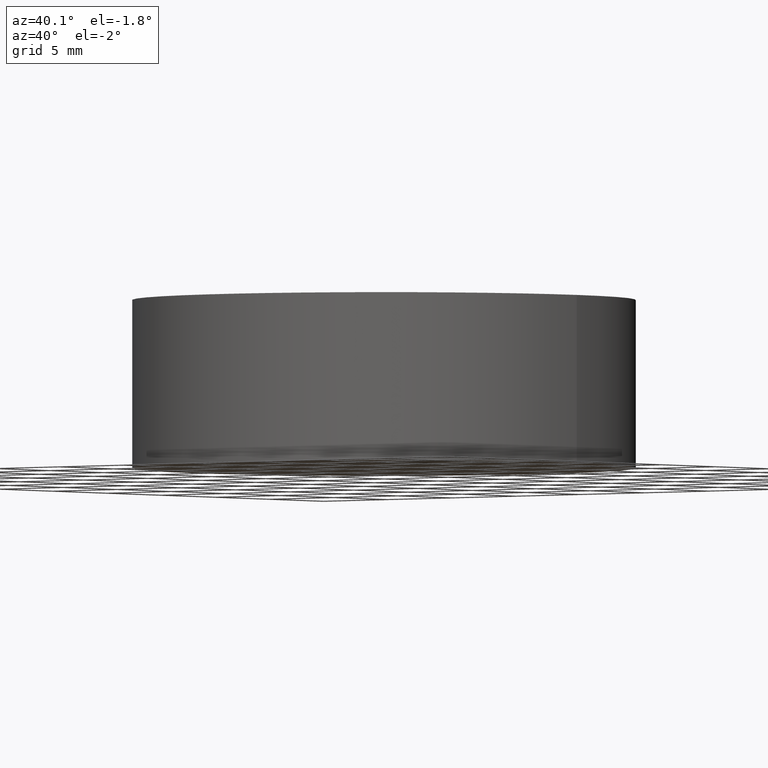
[diagram: clean part render]
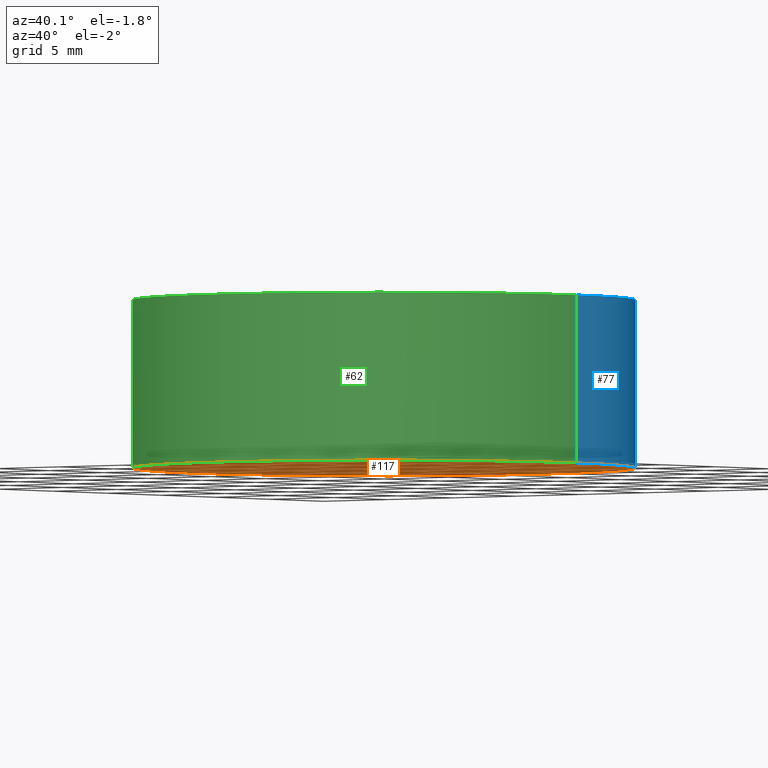
[diagram: same view with three faces highlighted in distinct colors, each labeled with its STEP entity id]
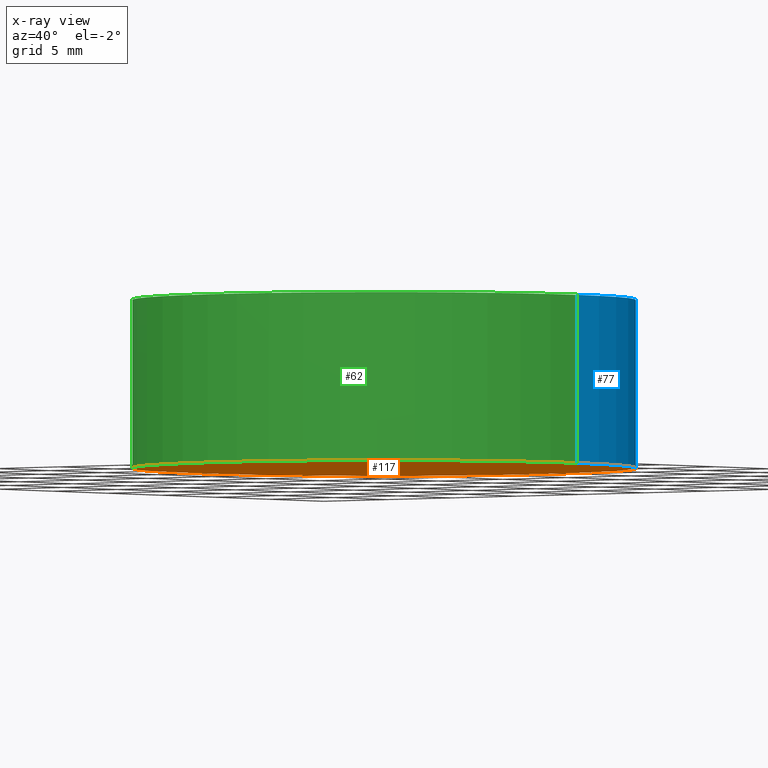
[diagram: x-ray of the same camera — body ghosted, the three highlighted faces saturated]
A machine part, auxiliary view with three faces highlighted in distinct colors.
The next image is the same camera in x-ray (body ghosted, the three faces saturated) — at least one of them is partly hidden behind the body in this view.
Their STEP definitions:

[orange] entity #117 — the highlighted planar face has unit normal (0, 0, 1).
#8 = DIRECTION ( 'NONE',  ( 1.000000000000000000, 0.0000000000000000000, 0.0000000000000000000 ) ) ;
#9 = ORIENTED_EDGE ( 'NONE', *, *, #85, .F. ) ;
#11 = VERTEX_POINT ( 'NONE', #39 ) ;
#17 = CIRCLE ( 'NONE', #114, 15.00000000000000000 ) ;
#19 = CARTESIAN_POINT ( 'NONE',  ( 0.0000000000000000000, 0.0000000000000000000, 0.0000000000000000000 ) ) ;
#28 = AXIS2_PLACEMENT_3D ( 'NONE', #126, #94, #109 ) ;
#29 = PLANE ( 'NONE',  #140 ) ;
#32 = ORIENTED_EDGE ( 'NONE', *, *, #127, .F. ) ;
#39 = CARTESIAN_POINT ( 'NONE',  ( 15.00000000000000000, 1.836970198721029600E-015, 0.0000000000000000000 ) ) ;
#49 = CIRCLE ( 'NONE', #28, 15.00000000000000000 ) ;
#70 = FACE_OUTER_BOUND ( 'NONE', #108, .T. ) ;
#73 = DIRECTION ( 'NONE',  ( 0.0000000000000000000, 0.0000000000000000000, 1.000000000000000000 ) ) ;
#81 = DIRECTION ( 'NONE',  ( 0.0000000000000000000, 0.0000000000000000000, 1.000000000000000000 ) ) ;
#85 = EDGE_CURVE ( 'NONE', #11, #118, #17, .T. ) ;
#94 = DIRECTION ( 'NONE',  ( 0.0000000000000000000, 0.0000000000000000000, 1.000000000000000000 ) ) ;
#102 = CARTESIAN_POINT ( 'NONE',  ( 0.0000000000000000000, 0.0000000000000000000, 0.0000000000000000000 ) ) ;
#108 = EDGE_LOOP ( 'NONE', ( #32, #9 ) ) ;
#109 = DIRECTION ( 'NONE',  ( 1.000000000000000000, 0.0000000000000000000, 0.0000000000000000000 ) ) ;
#114 = AXIS2_PLACEMENT_3D ( 'NONE', #19, #81, #8 ) ;
#117 = ADVANCED_FACE ( 'NONE', ( #70 ), #29, .F. ) ;
#118 = VERTEX_POINT ( 'NONE', #133 ) ;
#126 = CARTESIAN_POINT ( 'NONE',  ( 0.0000000000000000000, 0.0000000000000000000, 0.0000000000000000000 ) ) ;
#127 = EDGE_CURVE ( 'NONE', #118, #11, #49, .T. ) ;
#133 = CARTESIAN_POINT ( 'NONE',  ( -15.00000000000000000, 0.0000000000000000000, 0.0000000000000000000 ) ) ;
#137 = DIRECTION ( 'NONE',  ( 1.000000000000000000, 0.0000000000000000000, -0.0000000000000000000 ) ) ;
#140 = AXIS2_PLACEMENT_3D ( 'NONE', #102, #73, #137 ) ;

[blue] entity #77 — the highlighted cylindrical surface (partial cylindrical patch) has radius 15 mm, axis along (-0, -0, -1).
#3 = ORIENTED_EDGE ( 'NONE', *, *, #22, .F. ) ;
#4 = ORIENTED_EDGE ( 'NONE', *, *, #27, .T. ) ;
#6 = CARTESIAN_POINT ( 'NONE',  ( 0.0000000000000000000, 0.0000000000000000000, 10.00000000000000000 ) ) ;
#8 = DIRECTION ( 'NONE',  ( 1.000000000000000000, 0.0000000000000000000, 0.0000000000000000000 ) ) ;
#10 = DIRECTION ( 'NONE',  ( -1.000000000000000000, 0.0000000000000000000, 0.0000000000000000000 ) ) ;
#11 = VERTEX_POINT ( 'NONE', #39 ) ;
#17 = CIRCLE ( 'NONE', #114, 15.00000000000000000 ) ;
#19 = CARTESIAN_POINT ( 'NONE',  ( 0.0000000000000000000, 0.0000000000000000000, 0.0000000000000000000 ) ) ;
#20 = CARTESIAN_POINT ( 'NONE',  ( 15.00000000000000000, 1.836970198721029600E-015, 10.00000000000000000 ) ) ;
#21 = CARTESIAN_POINT ( 'NONE',  ( 0.0000000000000000000, 0.0000000000000000000, 10.00000000000000000 ) ) ;
#22 = EDGE_CURVE ( 'NONE', #60, #63, #111, .T. ) ;
#27 = EDGE_CURVE ( 'NONE', #60, #11, #75, .T. ) ;
#36 = DIRECTION ( 'NONE',  ( 0.0000000000000000000, 0.0000000000000000000, 1.000000000000000000 ) ) ;
#39 = CARTESIAN_POINT ( 'NONE',  ( 15.00000000000000000, 1.836970198721029600E-015, 0.0000000000000000000 ) ) ;
#40 = EDGE_LOOP ( 'NONE', ( #3, #4, #91, #84 ) ) ;
#47 = DIRECTION ( 'NONE',  ( -0.0000000000000000000, -0.0000000000000000000, -1.000000000000000000 ) ) ;
#48 = LINE ( 'NONE', #92, #93 ) ;
#51 = FACE_OUTER_BOUND ( 'NONE', #40, .T. ) ;
#57 = DIRECTION ( 'NONE',  ( -0.0000000000000000000, -0.0000000000000000000, -1.000000000000000000 ) ) ;
#60 = VERTEX_POINT ( 'NONE', #20 ) ;
#63 = VERTEX_POINT ( 'NONE', #72 ) ;
#72 = CARTESIAN_POINT ( 'NONE',  ( -15.00000000000000000, 0.0000000000000000000, 10.00000000000000000 ) ) ;
#74 = CARTESIAN_POINT ( 'NONE',  ( 15.00000000000000000, 1.836970198721029600E-015, 10.00000000000000000 ) ) ;
#75 = LINE ( 'NONE', #74, #99 ) ;
#77 = ADVANCED_FACE ( 'NONE', ( #51 ), #139, .T. ) ;
#81 = DIRECTION ( 'NONE',  ( 0.0000000000000000000, 0.0000000000000000000, 1.000000000000000000 ) ) ;
#84 = ORIENTED_EDGE ( 'NONE', *, *, #138, .F. ) ;
#85 = EDGE_CURVE ( 'NONE', #11, #118, #17, .T. ) ;
#91 = ORIENTED_EDGE ( 'NONE', *, *, #85, .T. ) ;
#92 = CARTESIAN_POINT ( 'NONE',  ( -15.00000000000000000, 0.0000000000000000000, 10.00000000000000000 ) ) ;
#93 = VECTOR ( 'NONE', #112, 1000.000000000000000 ) ;
#99 = VECTOR ( 'NONE', #57, 1000.000000000000000 ) ;
#100 = AXIS2_PLACEMENT_3D ( 'NONE', #21, #36, #105 ) ;
#105 = DIRECTION ( 'NONE',  ( 1.000000000000000000, 0.0000000000000000000, 0.0000000000000000000 ) ) ;
#111 = CIRCLE ( 'NONE', #100, 15.00000000000000000 ) ;
#112 = DIRECTION ( 'NONE',  ( -0.0000000000000000000, -0.0000000000000000000, -1.000000000000000000 ) ) ;
#114 = AXIS2_PLACEMENT_3D ( 'NONE', #19, #81, #8 ) ;
#118 = VERTEX_POINT ( 'NONE', #133 ) ;
#125 = AXIS2_PLACEMENT_3D ( 'NONE', #6, #47, #10 ) ;
#133 = CARTESIAN_POINT ( 'NONE',  ( -15.00000000000000000, 0.0000000000000000000, 0.0000000000000000000 ) ) ;
#138 = EDGE_CURVE ( 'NONE', #63, #118, #48, .T. ) ;
#139 = CYLINDRICAL_SURFACE ( 'NONE', #125, 15.00000000000000000 ) ;

[green] entity #62 — the highlighted cylindrical surface (partial cylindrical patch) has radius 15 mm, axis along (-0, -0, -1).
#11 = VERTEX_POINT ( 'NONE', #39 ) ;
#18 = DIRECTION ( 'NONE',  ( 0.0000000000000000000, 0.0000000000000000000, 1.000000000000000000 ) ) ;
#20 = CARTESIAN_POINT ( 'NONE',  ( 15.00000000000000000, 1.836970198721029600E-015, 10.00000000000000000 ) ) ;
#27 = EDGE_CURVE ( 'NONE', #60, #11, #75, .T. ) ;
#28 = AXIS2_PLACEMENT_3D ( 'NONE', #126, #94, #109 ) ;
#34 = ORIENTED_EDGE ( 'NONE', *, *, #129, .F. ) ;
#35 = AXIS2_PLACEMENT_3D ( 'NONE', #80, #18, #71 ) ;
#39 = CARTESIAN_POINT ( 'NONE',  ( 15.00000000000000000, 1.836970198721029600E-015, 0.0000000000000000000 ) ) ;
#45 = FACE_OUTER_BOUND ( 'NONE', #65, .T. ) ;
#48 = LINE ( 'NONE', #92, #93 ) ;
#49 = CIRCLE ( 'NONE', #28, 15.00000000000000000 ) ;
#55 = ORIENTED_EDGE ( 'NONE', *, *, #127, .T. ) ;
#57 = DIRECTION ( 'NONE',  ( -0.0000000000000000000, -0.0000000000000000000, -1.000000000000000000 ) ) ;
#60 = VERTEX_POINT ( 'NONE', #20 ) ;
#62 = ADVANCED_FACE ( 'NONE', ( #45 ), #87, .T. ) ;
#63 = VERTEX_POINT ( 'NONE', #72 ) ;
#65 = EDGE_LOOP ( 'NONE', ( #123, #34, #113, #55 ) ) ;
#71 = DIRECTION ( 'NONE',  ( 1.000000000000000000, 0.0000000000000000000, 0.0000000000000000000 ) ) ;
#72 = CARTESIAN_POINT ( 'NONE',  ( -15.00000000000000000, 0.0000000000000000000, 10.00000000000000000 ) ) ;
#74 = CARTESIAN_POINT ( 'NONE',  ( 15.00000000000000000, 1.836970198721029600E-015, 10.00000000000000000 ) ) ;
#75 = LINE ( 'NONE', #74, #99 ) ;
#79 = CARTESIAN_POINT ( 'NONE',  ( 0.0000000000000000000, 0.0000000000000000000, 10.00000000000000000 ) ) ;
#80 = CARTESIAN_POINT ( 'NONE',  ( 0.0000000000000000000, 0.0000000000000000000, 10.00000000000000000 ) ) ;
#82 = DIRECTION ( 'NONE',  ( -0.0000000000000000000, -0.0000000000000000000, -1.000000000000000000 ) ) ;
#87 = CYLINDRICAL_SURFACE ( 'NONE', #104, 15.00000000000000000 ) ;
#92 = CARTESIAN_POINT ( 'NONE',  ( -15.00000000000000000, 0.0000000000000000000, 10.00000000000000000 ) ) ;
#93 = VECTOR ( 'NONE', #112, 1000.000000000000000 ) ;
#94 = DIRECTION ( 'NONE',  ( 0.0000000000000000000, 0.0000000000000000000, 1.000000000000000000 ) ) ;
#99 = VECTOR ( 'NONE', #57, 1000.000000000000000 ) ;
#103 = CIRCLE ( 'NONE', #35, 15.00000000000000000 ) ;
#104 = AXIS2_PLACEMENT_3D ( 'NONE', #79, #82, #128 ) ;
#109 = DIRECTION ( 'NONE',  ( 1.000000000000000000, 0.0000000000000000000, 0.0000000000000000000 ) ) ;
#112 = DIRECTION ( 'NONE',  ( -0.0000000000000000000, -0.0000000000000000000, -1.000000000000000000 ) ) ;
#113 = ORIENTED_EDGE ( 'NONE', *, *, #138, .T. ) ;
#118 = VERTEX_POINT ( 'NONE', #133 ) ;
#123 = ORIENTED_EDGE ( 'NONE', *, *, #27, .F. ) ;
#126 = CARTESIAN_POINT ( 'NONE',  ( 0.0000000000000000000, 0.0000000000000000000, 0.0000000000000000000 ) ) ;
#127 = EDGE_CURVE ( 'NONE', #118, #11, #49, .T. ) ;
#128 = DIRECTION ( 'NONE',  ( -1.000000000000000000, 0.0000000000000000000, 0.0000000000000000000 ) ) ;
#129 = EDGE_CURVE ( 'NONE', #63, #60, #103, .T. ) ;
#133 = CARTESIAN_POINT ( 'NONE',  ( -15.00000000000000000, 0.0000000000000000000, 0.0000000000000000000 ) ) ;
#138 = EDGE_CURVE ( 'NONE', #63, #118, #48, .T. ) ;